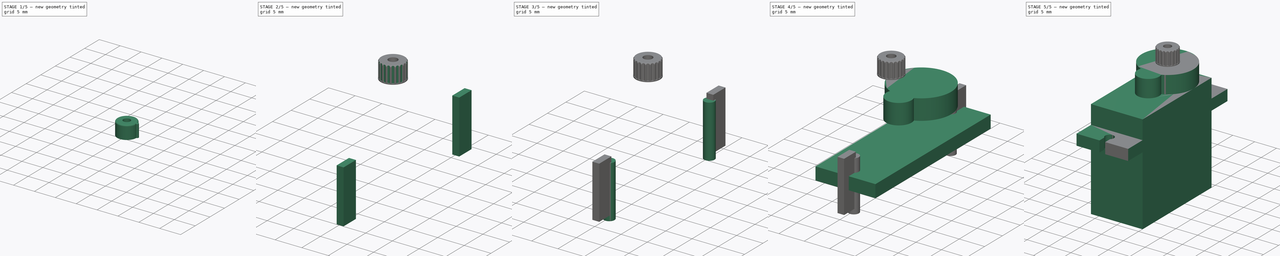
[diagram: build sequence overview — one tinted view per stage of 5, left to right]
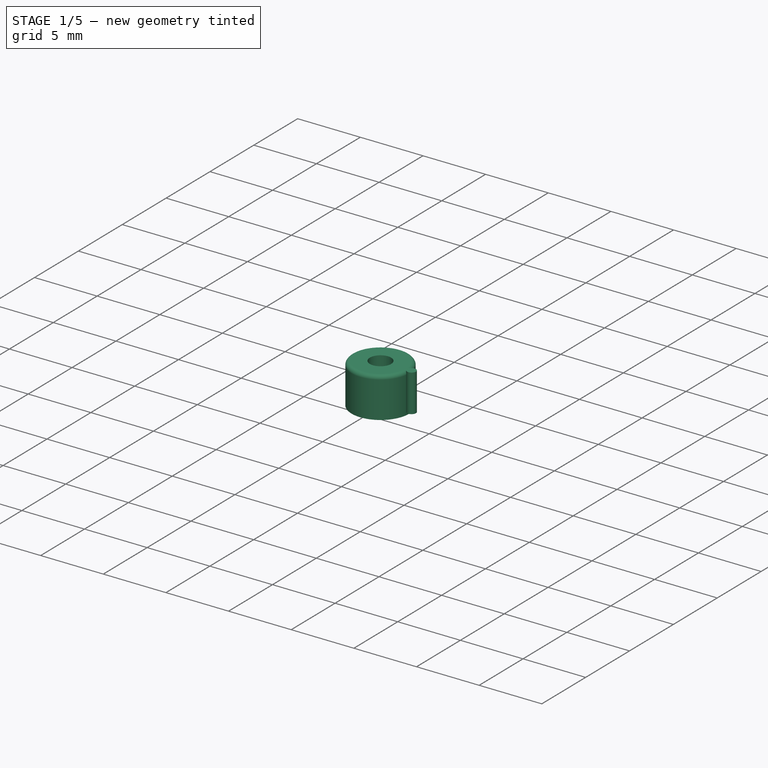
[diagram: stage 1 of 5 — iso view after this stage's code; geometry added in this stage tinted green]
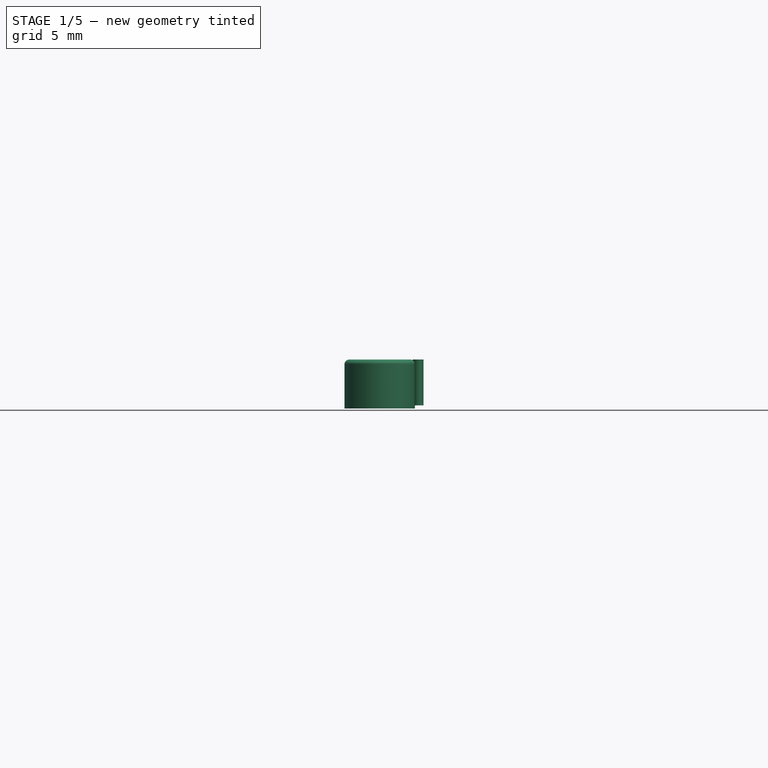
[diagram: stage 1 of 5 — front view after this stage's code; geometry added in this stage tinted green]
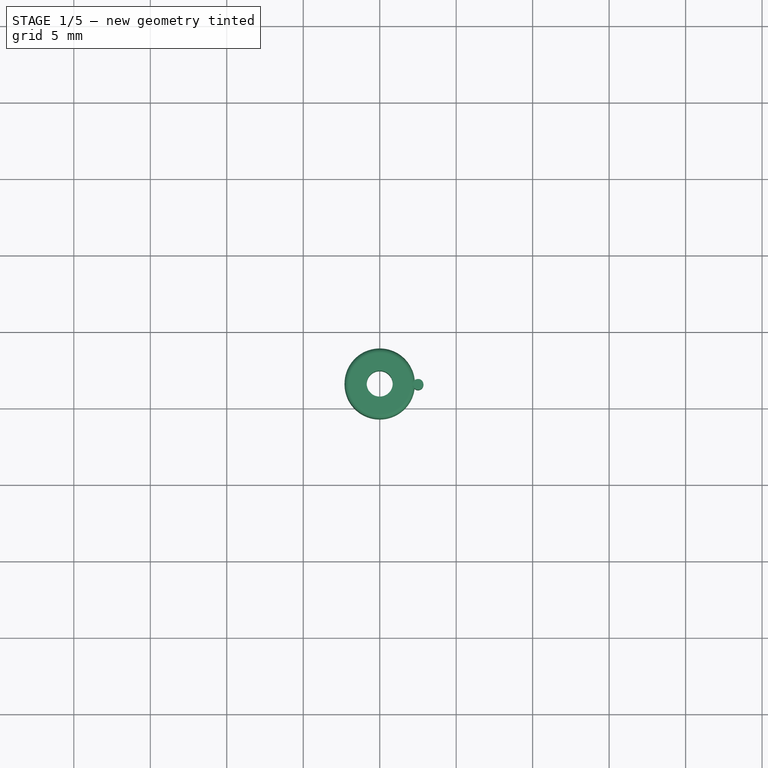
[diagram: stage 1 of 5 — top view after this stage's code; geometry added in this stage tinted green]
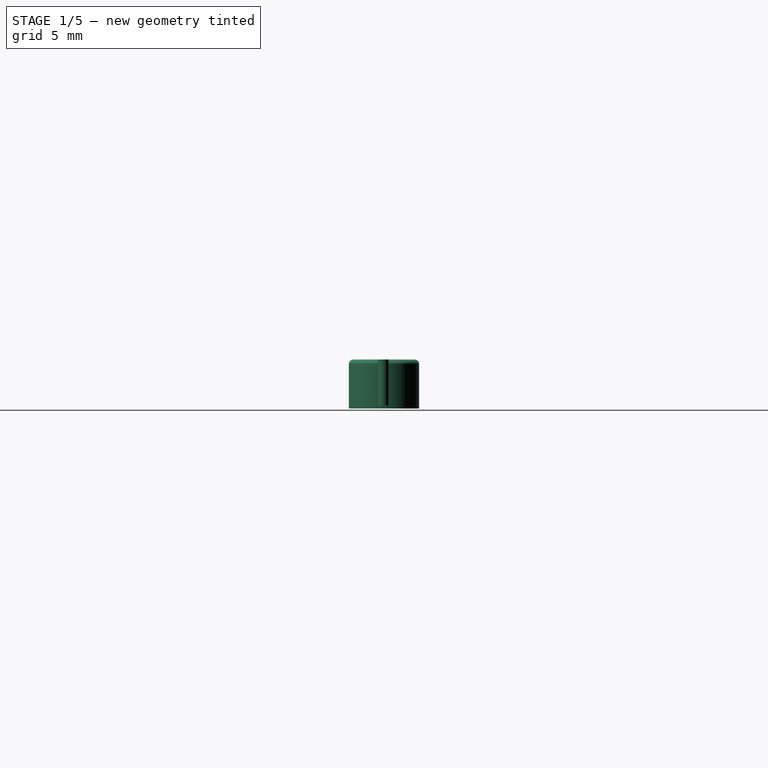
[diagram: stage 1 of 5 — right view after this stage's code; geometry added in this stage tinted green]
FCSTD DOCUMENT  (FreeCAD 0.18R16117 (Git))
Label: Servo-SG90
License: CreativeCommons Attribution-ShareAlike
LicenseURL: http://creativecommons.org/licenses/by-sa/4.0/
objects: Part::Cylinder×7, App::MeasureDistance×7, Part::Fuse×6, Part::Box×4, Part::Cut×3, Sketcher::SketchObject×1, PartDesign::Pocket×1, Part::FeaturePython×1, Part::Fillet×1, App::DocumentObjectGroup×1, Part::Feature×1
note: 26 computed .brp shape members not serialized (recipe doc carries the construction recipe); baked Part::Feature solids carry a one-line shape summary decoded from their .brp

FEATURE [Part::Cylinder] Cylinder006  label="Cilindro002"
  Angle = 360
  AttacherType = Attacher::AttachEngine3D
  Height = 3
  Placement = pos=(2.51021,16.5511,26.9) rot=(0,0,1;0rad)
  Radius = 0.35
FEATURE [Part::Cylinder] Cylinder002  label="Cilindro_interior"
  Angle = 360
  AttacherType = Attacher::AttachEngine3D
  Height = 3.2
  Placement = pos=(0,16.6,26.7) rot=(0,0,1;0rad)
  Radius = 2.3
FEATURE [Part::Cylinder] Cylinder005  label="Cilindro_exterior"
  Angle = 360
  AttacherType = Attacher::AttachEngine3D
  Height = 3.2
  Placement = pos=(0,16.6,26.7) rot=(0,0,1;0rad)
  Radius = 0.85
FEATURE [Part::Cut] Cut001  label="Cilindro_vaciado"
  Base = -> Cylinder002
  Tool = -> Cylinder005
FEATURE [Part::Fillet] Fillet
  Base = -> Cut001
  Edges = 1 edges r=0.3: [Edge1]
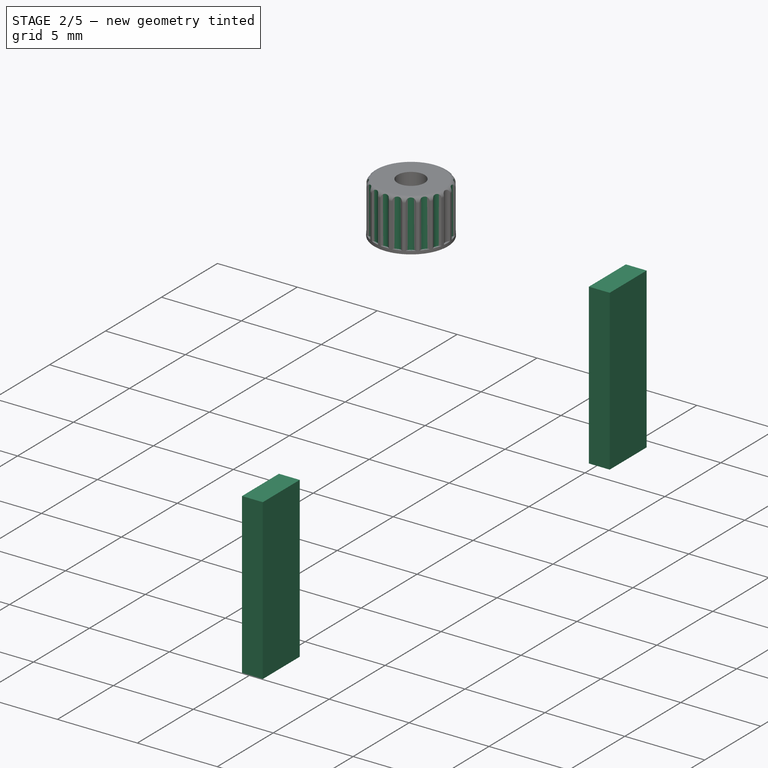
[diagram: stage 2 of 5 — iso view after this stage's code; geometry added in this stage tinted green]
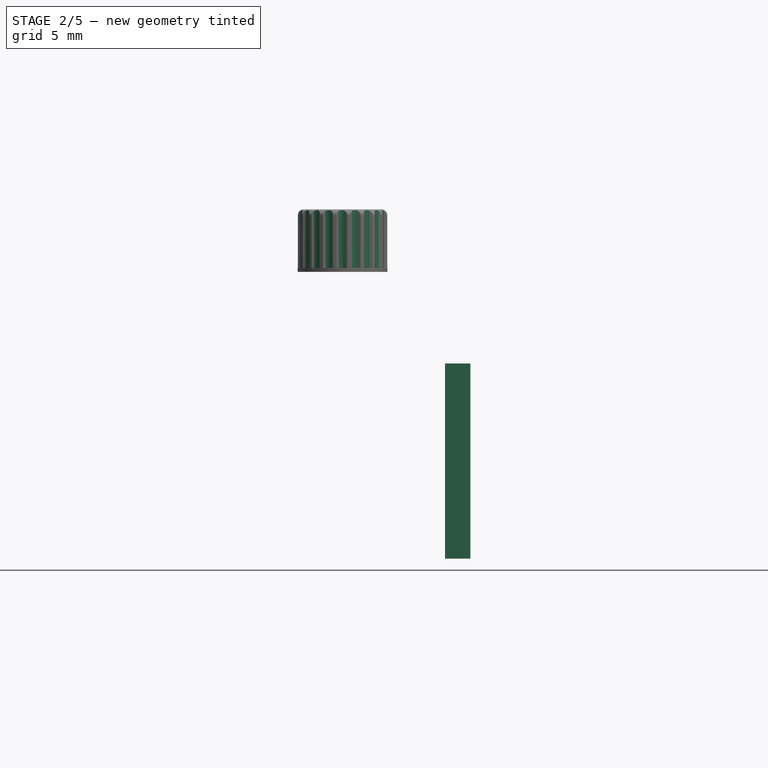
[diagram: stage 2 of 5 — front view after this stage's code; geometry added in this stage tinted green]
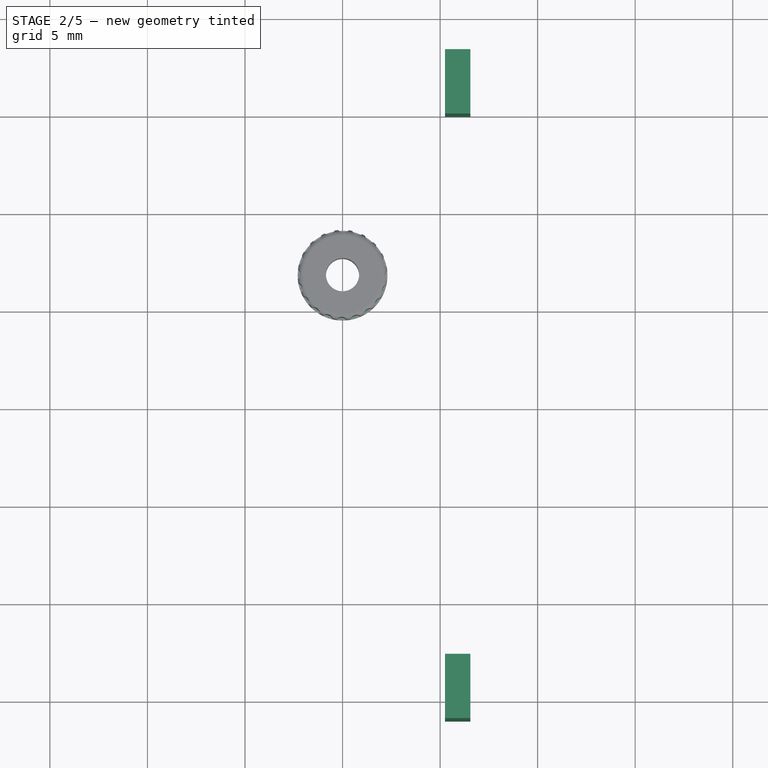
[diagram: stage 2 of 5 — top view after this stage's code; geometry added in this stage tinted green]
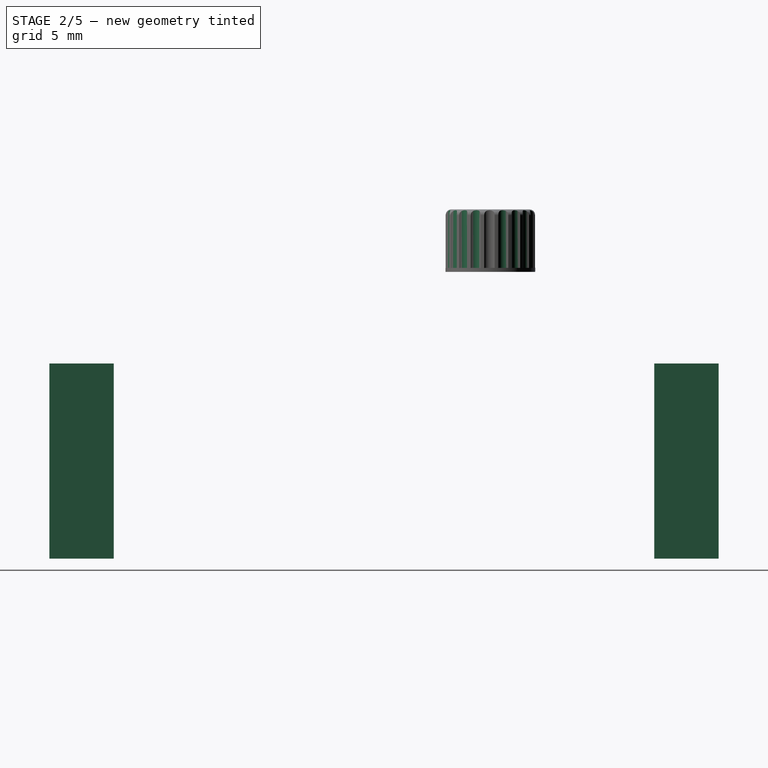
[diagram: stage 2 of 5 — right view after this stage's code; geometry added in this stage tinted green]
FEATURE [Part::Box] Box002  label="Cubo002"
  AttacherType = Attacher::AttachEngine3D
  Height = 10
  Length = 1.3
  Placement = pos=(5.25,-6,12) rot=(0,0,1;0rad)
  Width = 3.3
FEATURE [Part::Box] Box003  label="Cubo003"
  AttacherType = Attacher::AttachEngine3D
  Height = 10
  Length = 1.3
  Placement = pos=(5.25,25,12) rot=(0,0,1;0rad)
  Width = 3.3
FEATURE [Part::FeaturePython] Array  # Draft array (typed FeaturePython)
  Angle = 360
  ArrayType = 1
  Axis = (0,0,1)
  Base = -> Cylinder006
  Center = (0,16.6,0)
  Fuse = false
  IntervalAxis = (0,0,0)
  IntervalX = (1,0,0)
  IntervalY = (0,1,0)
  IntervalZ = (0,0,0)
  NumberPolar = 20
  NumberX = 2
  NumberY = 2
  NumberZ = 1
FEATURE [Part::Cut] Cut002  label="Eje_engranaje"
  Base = -> Fillet
  Tool = -> Array
FEATURE [App::DocumentObjectGroup] Grupo003  label="Servo"
  Group = -> [Cut,Pocket,Cut002]
FEATURE [Part::Feature] Fusion007001  label="Servo-sg90-final"
  shape: bbox 11.8 x 32.4 x 29.9 mm, 77 faces (baked)
FEATURE [App::MeasureDistance] Distance  label="Distance: 11.80 mm"
  Distance = 11.8
  P1 = (-5.9,27.7,18.4)
  P2 = (5.9,27.7,18.4)
FEATURE [App::MeasureDistance] Distance001  label="Distance: 32.40 mm"
  Distance = 32.4
  P1 = (5.9,27.7,18.4)
  P2 = (5.9,-4.7,18.4)
FEATURE [App::MeasureDistance] Distance002  label="Distance: 22.50 mm"
  Distance = 22.4966
  P1 = (-5.9,22.4966,22.7)
  P2 = (-5.9,0,22.7)
FEATURE [App::MeasureDistance] Distance003  label="Distance: 2.09 mm"
  Distance = 2.09007
  P1 = (-0.65,27.7,18.4)
  P2 = (-0.65,25.6099,18.4)
FEATURE [App::MeasureDistance] Distance004  label="Distance: 2.00 mm"
  Distance = 1.99722
  P1 = (0.999079,24.8422,18.4)
  P2 = (-0.996874,24.771,18.4)
FEATURE [App::MeasureDistance] Distance005  label="Distance: 1.37 mm"
  Distance = 1.36532
  P1 = (0.0277994,23.8573,18.4)
  P2 = (-0.120012,22.5,18.4106)
FEATURE [App::MeasureDistance] Distance006  label="Distance: 18.40 mm"
  Distance = 18.4
  P1 = (5.9,0.0172974,0)
  P2 = (5.9,-0.00435691,18.4)
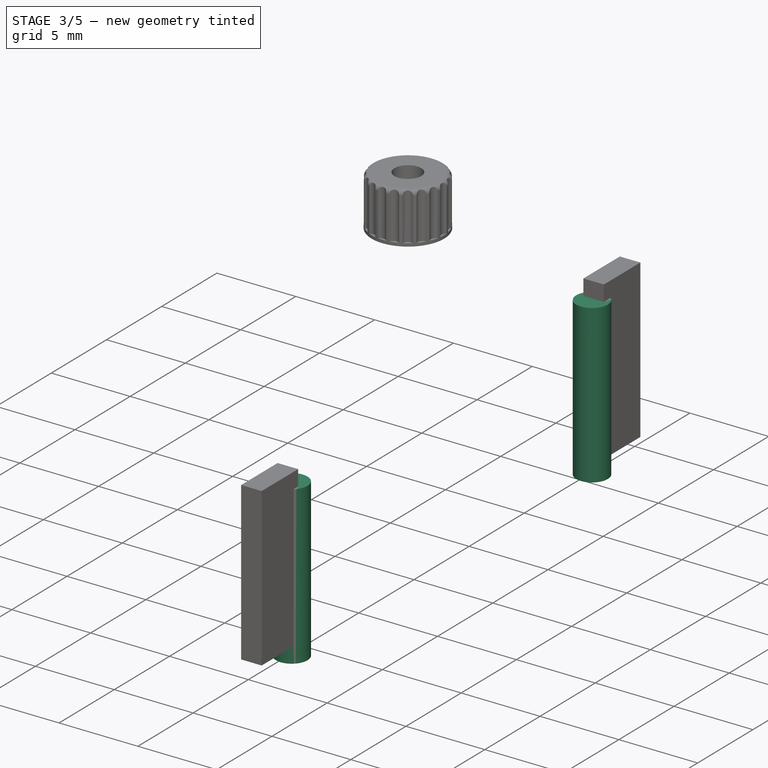
[diagram: stage 3 of 5 — iso view after this stage's code; geometry added in this stage tinted green]
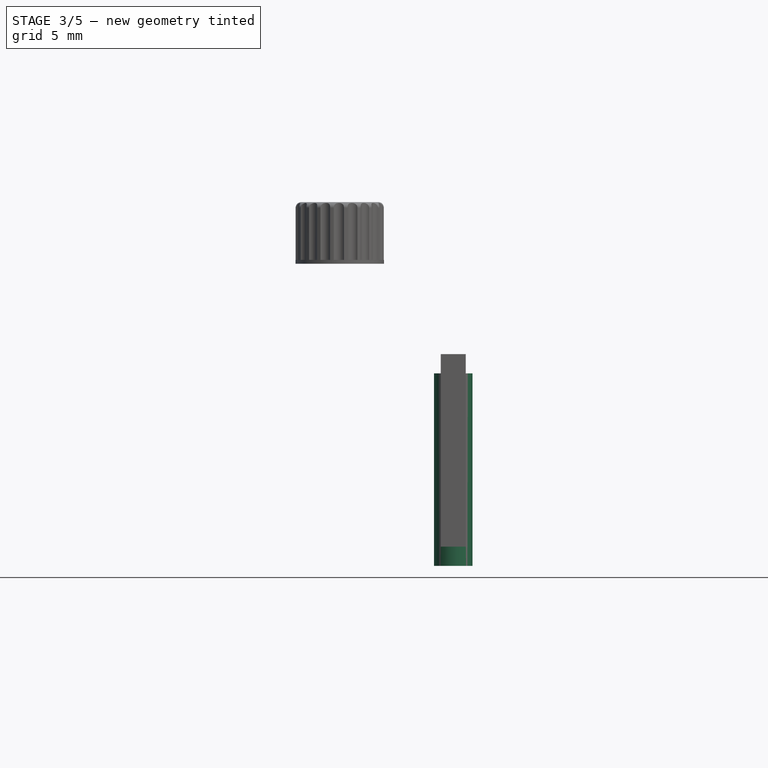
[diagram: stage 3 of 5 — front view after this stage's code; geometry added in this stage tinted green]
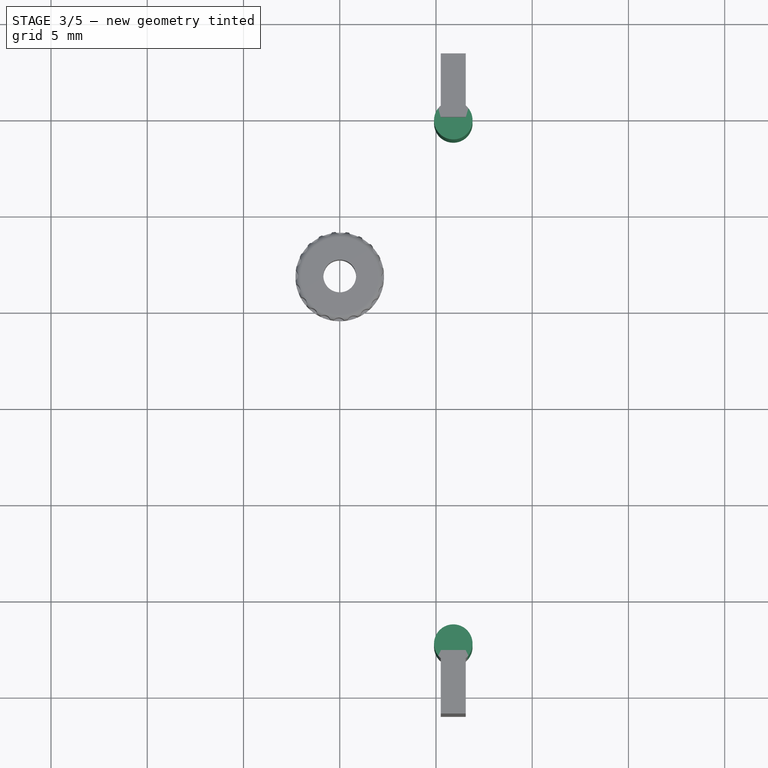
[diagram: stage 3 of 5 — top view after this stage's code; geometry added in this stage tinted green]
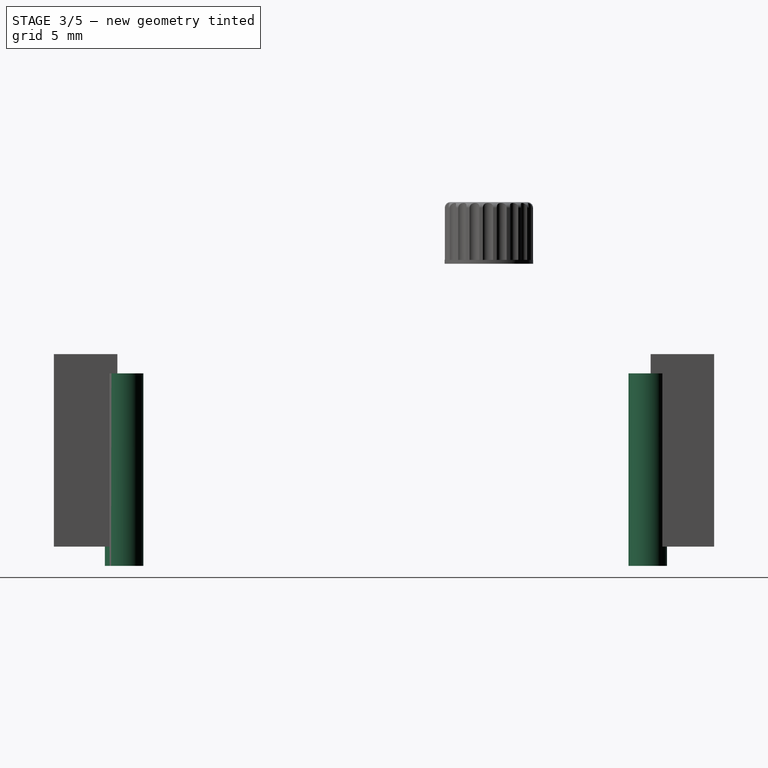
[diagram: stage 3 of 5 — right view after this stage's code; geometry added in this stage tinted green]
FEATURE [Part::Cylinder] Cylinder003  label="Taladro"
  Angle = 360
  AttacherType = Attacher::AttachEngine3D
  Height = 10
  Placement = pos=(5.9,-2.35,11) rot=(0,0,1;0rad)
  Radius = 1
FEATURE [Part::Cylinder] Cylinder004  label="Taladro2"
  Angle = 360
  AttacherType = Attacher::AttachEngine3D
  Height = 10
  Placement = pos=(5.9,24.85,11) rot=(0,0,1;0rad)
  Radius = 1
FEATURE [Part::Fuse] Fusion004  label="Taladros"
  Base = -> Cylinder003
  Tool = -> Cylinder004
FEATURE [Part::Fuse] Fusion005  label="Rebajes"
  Base = -> Box002
  Tool = -> Box003
FEATURE [Part::Fuse] Fusion006  label="Taladros001"
  Base = -> Fusion004
  Tool = -> Fusion005
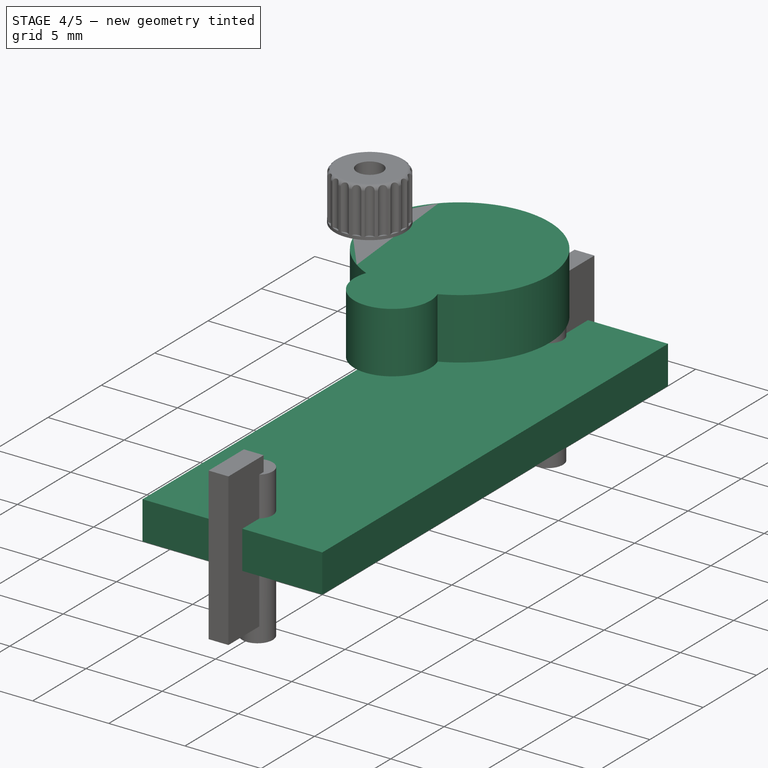
[diagram: stage 4 of 5 — iso view after this stage's code; geometry added in this stage tinted green]
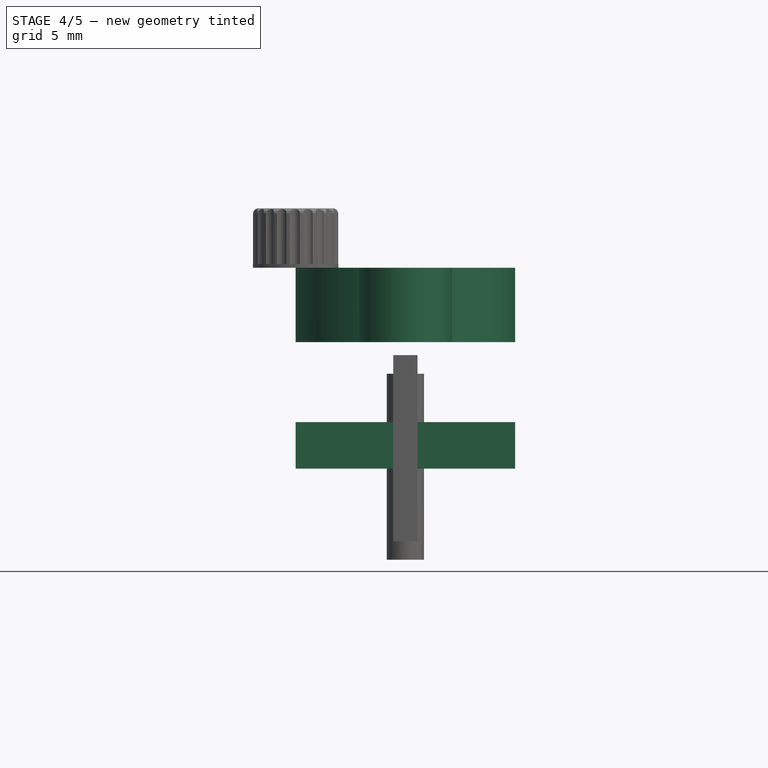
[diagram: stage 4 of 5 — front view after this stage's code; geometry added in this stage tinted green]
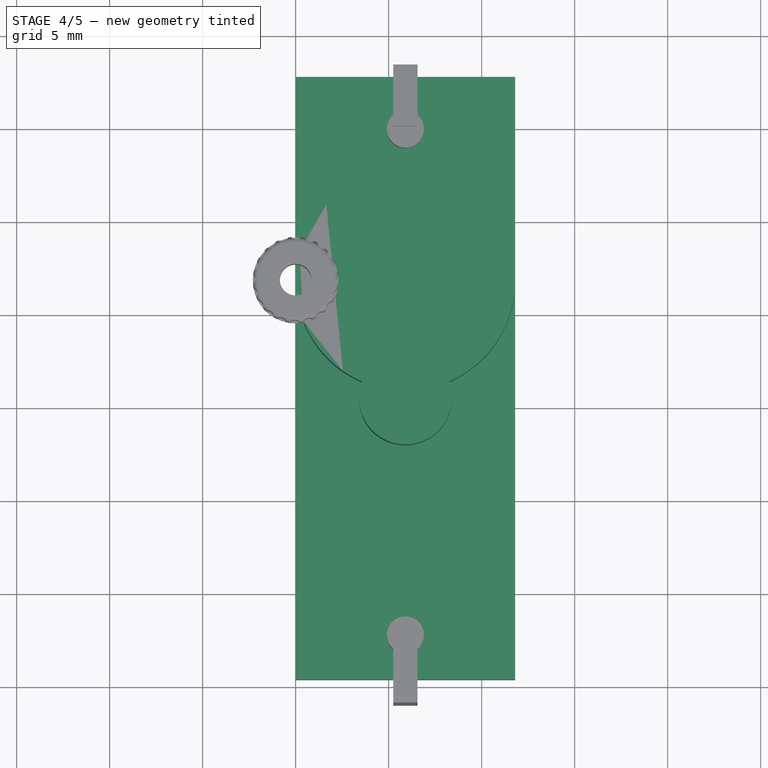
[diagram: stage 4 of 5 — top view after this stage's code; geometry added in this stage tinted green]
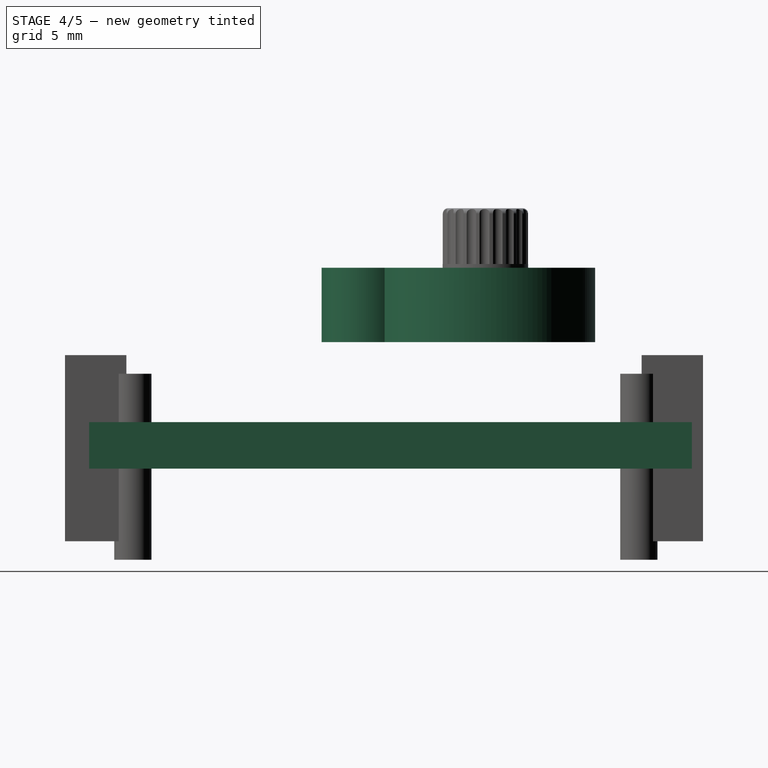
[diagram: stage 4 of 5 — right view after this stage's code; geometry added in this stage tinted green]
FEATURE [Part::Box] Box001  label="Cubo001"
  AttacherType = Attacher::AttachEngine3D
  Height = 2.5
  Length = 11.8
  Placement = pos=(0,-4.7,15.9) rot=(0,0,1;0rad)
  Width = 32.4
FEATURE [Part::Cylinder] Cylinder  label="Cilindro"
  Angle = 360
  AttacherType = Attacher::AttachEngine3D
  Height = 4
  Placement = pos=(5.9,16.6,22.7) rot=(0,0,1;0rad)
  Radius = 5.9
FEATURE [Part::Cylinder] Cylinder001  label="Cilindro001"
  Angle = 360
  AttacherType = Attacher::AttachEngine3D
  Height = 4
  Placement = pos=(5.9,10.3,22.7) rot=(0,0,1;0rad)
  Radius = 2.5
FEATURE [Part::Fuse] Fusion001
  Base = -> Cylinder
  Tool = -> Cylinder001
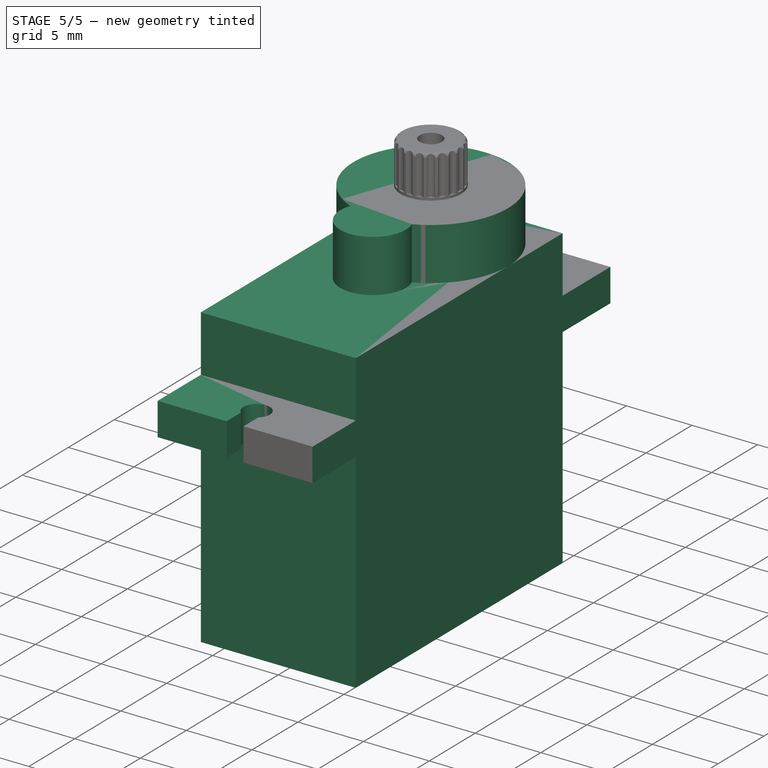
[diagram: stage 5 of 5 — iso view after this stage's code; geometry added in this stage tinted green]
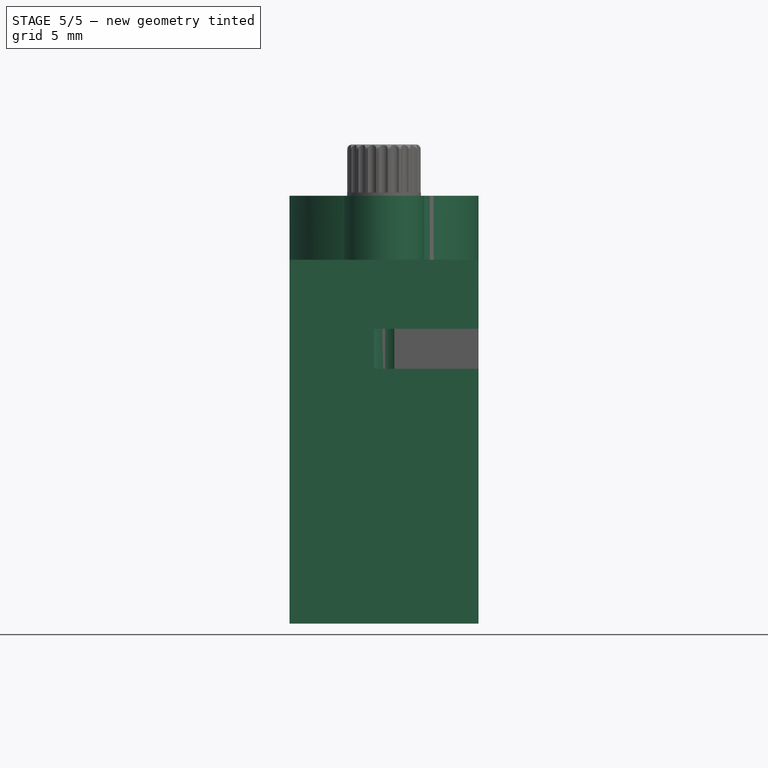
[diagram: stage 5 of 5 — front view after this stage's code; geometry added in this stage tinted green]
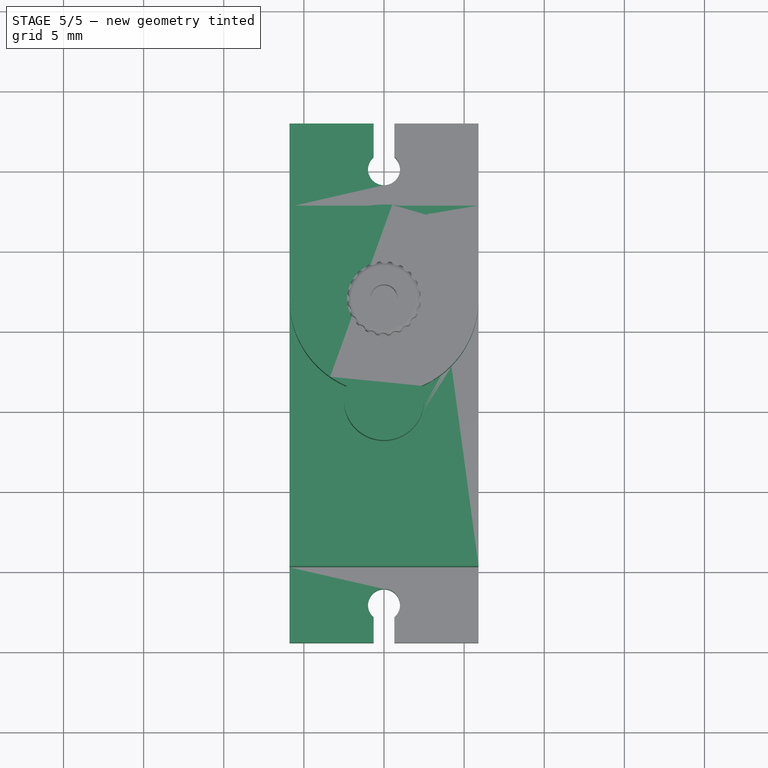
[diagram: stage 5 of 5 — top view after this stage's code; geometry added in this stage tinted green]
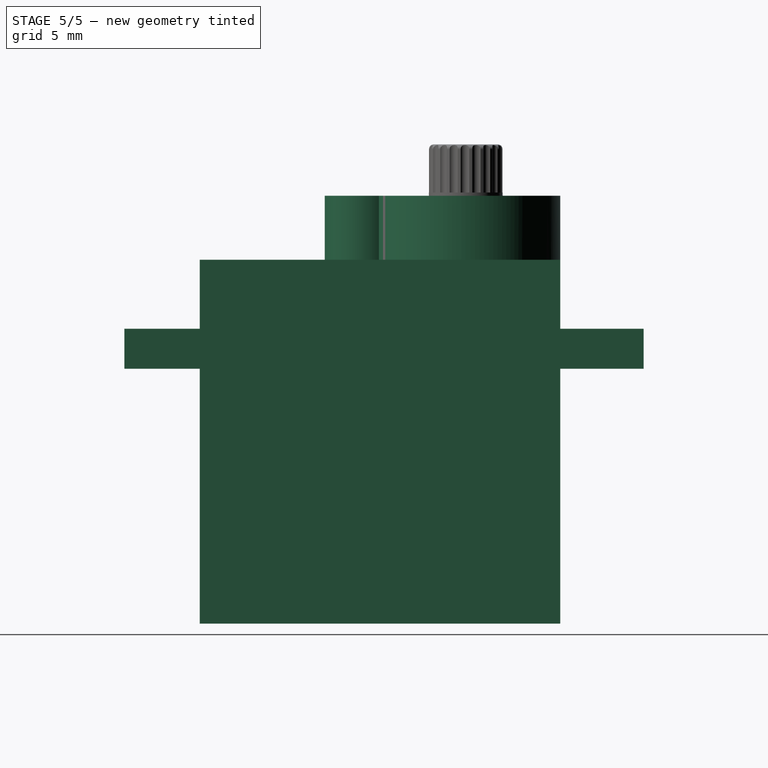
[diagram: stage 5 of 5 — right view after this stage's code; geometry added in this stage tinted green]
FEATURE [Part::Box] Box  label="Cubo"
  AttacherType = Attacher::AttachEngine3D
  Height = 22.7
  Length = 11.8
  Width = 22.5
FEATURE [Part::Fuse] Fusion  label="Square_body"
  Base = -> Box
  Tool = -> Box001
FEATURE [Part::Fuse] Fusion003
  Base = -> Fusion
  Tool = -> Fusion001
FEATURE [Part::Cut] Cut  label="Cuerpo_con_taladros"
  Base = -> Fusion003
  Placement = pos=(-5.9,0,0) rot=(0,0,1;0rad)
  Tool = -> Fusion006
FEATURE [Sketcher::SketchObject] Sketch
  MapMode = 5
  Placement = pos=(-5.9,22.5,0) rot=(0,0.707107,0.707107;3.14159rad)
  Support = -> [Cut]
  sketch-geometry (4):
    g0: LineSegment StartX=-4.1 StartY=4.5 StartZ=0 EndX=-7.7 EndY=4.5 EndZ=0
    g1: LineSegment StartX=-7.7 StartY=4.5 StartZ=0 EndX=-7.7 EndY=5.7 EndZ=0
    g2: LineSegment StartX=-7.7 StartY=5.7 StartZ=0 EndX=-4.1 EndY=5.7 EndZ=0
    g3: LineSegment StartX=-4.1 StartY=5.7 StartZ=0 EndX=-4.1 EndY=4.5 EndZ=0
  constraints (12):
    c: Coincident(g0,g1)
    c: Coincident(g1,g2)
    c: Coincident(g2,g3)
    c: Coincident(g3,g0)
    c: Horizontal(g0)
    c: Horizontal(g2)
    c: Vertical(g1)
    c: Vertical(g3)
    c: DistanceX(g2) = 3.6
    c: DistanceY(g1) = 1.2
    c: DistanceX(g-1,g0) = -4.1
    c: DistanceY(g-1,g0) = 4.5
FEATURE [PartDesign::Pocket] Pocket  label="Ranura_cable"
  Length = 3
  Length2 = 100
  Placement = pos=(-5.9,0,0) rot=(0,0,1;0rad)
  Profile = -> Sketch
  Type = 0
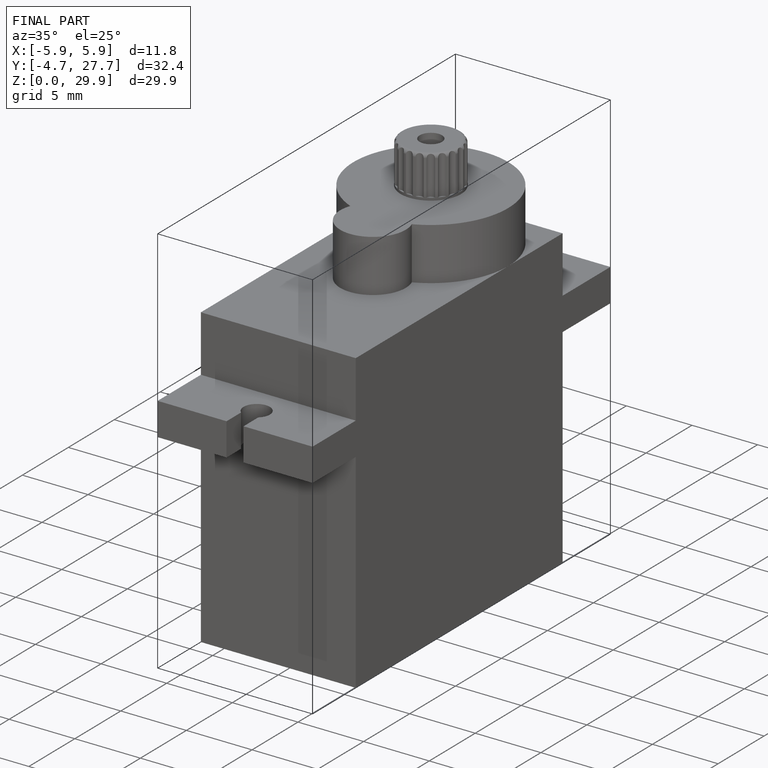
[diagram: finished part — iso view with bounding-box wireframe]
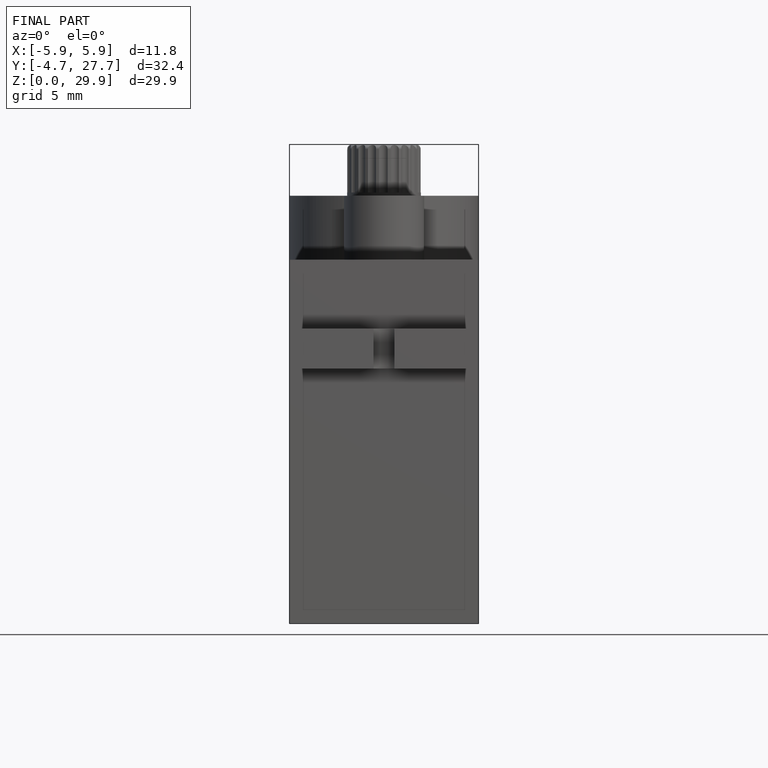
[diagram: finished part — front view with bounding-box wireframe]
